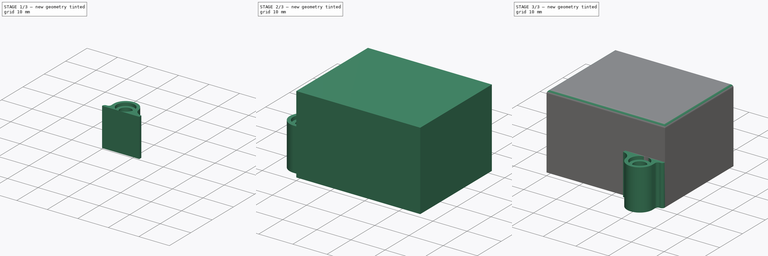
[diagram: build sequence overview — one tinted view per stage of 3, left to right]
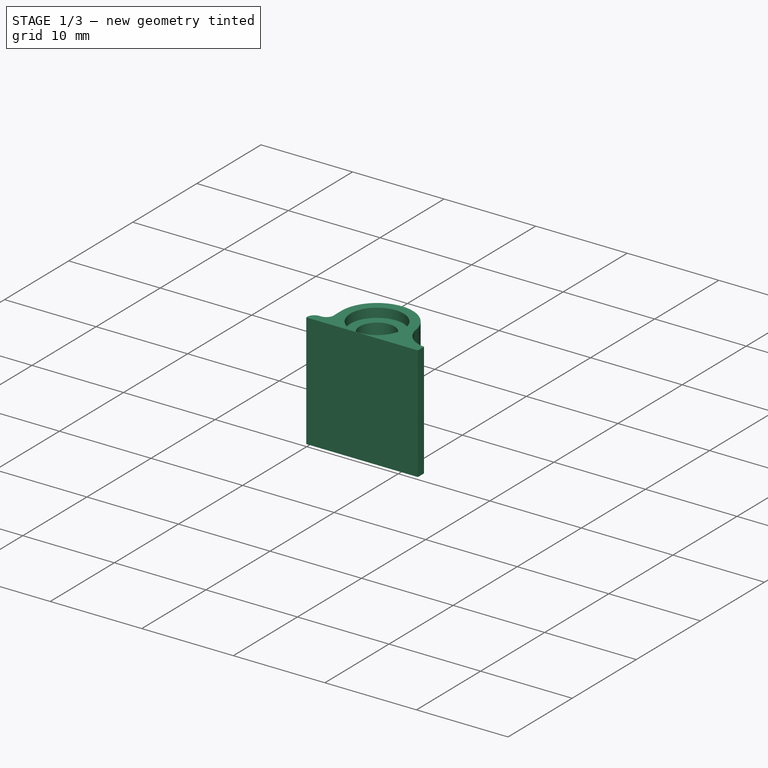
[diagram: stage 1 of 3 — iso view after this stage's code; geometry added in this stage tinted green]
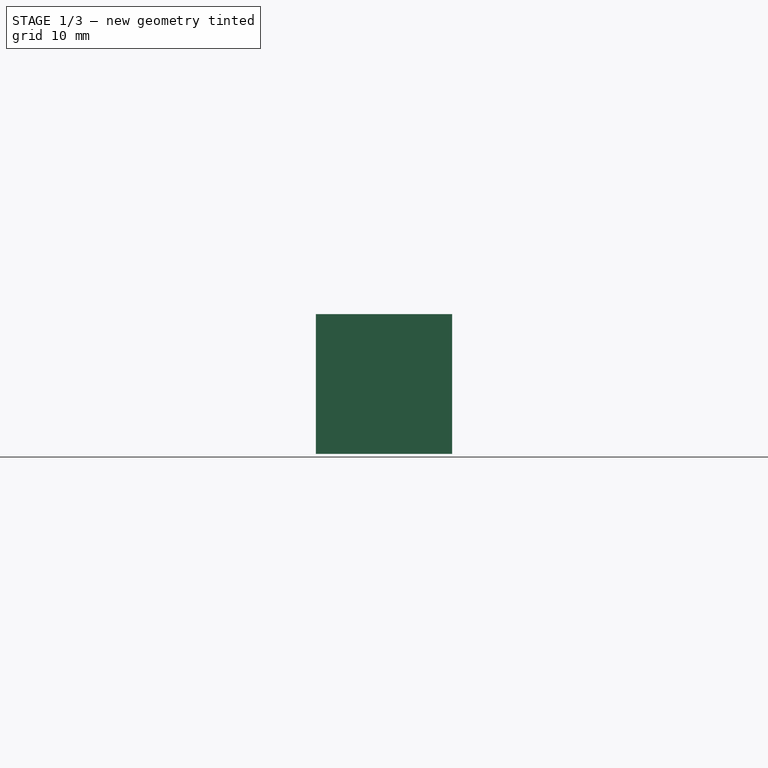
[diagram: stage 1 of 3 — front view after this stage's code; geometry added in this stage tinted green]
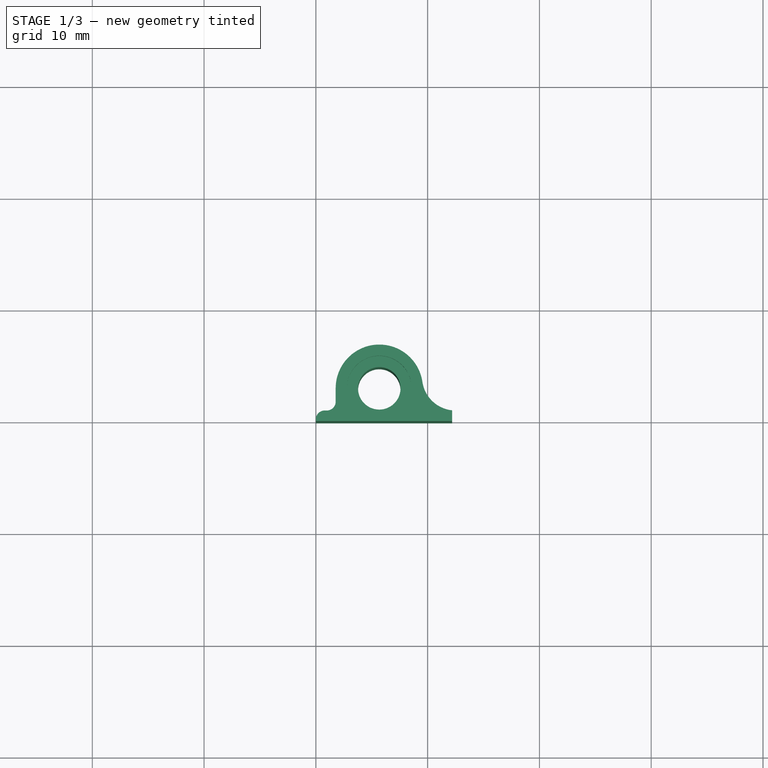
[diagram: stage 1 of 3 — top view after this stage's code; geometry added in this stage tinted green]
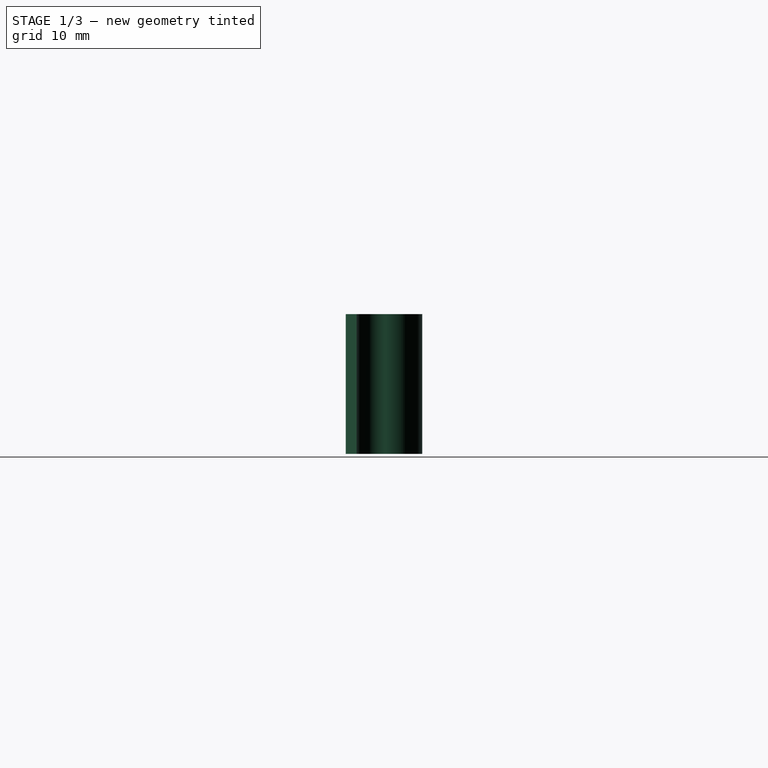
[diagram: stage 1 of 3 — right view after this stage's code; geometry added in this stage tinted green]
FCSTD DOCUMENT  (FreeCAD 1.0R39109 (Git))
Label: relay_case
License: All rights reserved
LicenseURL: https://en.wikipedia.org/wiki/All_rights_reserved
objects: PartDesign::Body×2, Sketcher::SketchObject×1, PartDesign::Pad×1, Part::Box×1, Part::Feature×1, Part::Common×1, PartDesign::FeatureBase×1, App::Part×1, Part::FeaturePython×1, Part::Fillet×1
note: 14 computed .brp shape members not serialized (recipe doc carries the construction recipe); baked Part::Feature solids carry a one-line shape summary decoded from their .brp

FEATURE [PartDesign::Body] Body  label="Main Body"
  AllowCompound = false
  Group = -> [Sketch,Pad]
  Origin = -> Origin
  Tip = -> Pad
FEATURE [Part::Box] Box  label="Cube"
  AttacherType = Attacher::AttachEngine3D
  Height = 12.7
  Length = 9.906
  Placement = pos=(-8.9662,0,0) rot=(0,0,1;0rad)
  Width = 12.192
  expr: .Placement.Base.x = -Length + 37 thou
FEATURE [Part::Feature] Part__Feature  label="RPI2-TOP"
  Placement = pos=(0,-4.4069,10.5029) rot=(-1,0,0;4.71239rad)
  shape: bbox 73.8 x 96.25 x 15.5 mm, 216 faces (baked)
FEATURE [Part::Common] Common  label="Screw hole"
  Base = -> Part__Feature
  Placement = pos=(0,30.8798,0) rot=(0,0,1;-1.5708rad)
  Refine = true
  Tool = -> Box
  expr: .Placement.Base.y = Sketch.Constraints.width + 37 thou
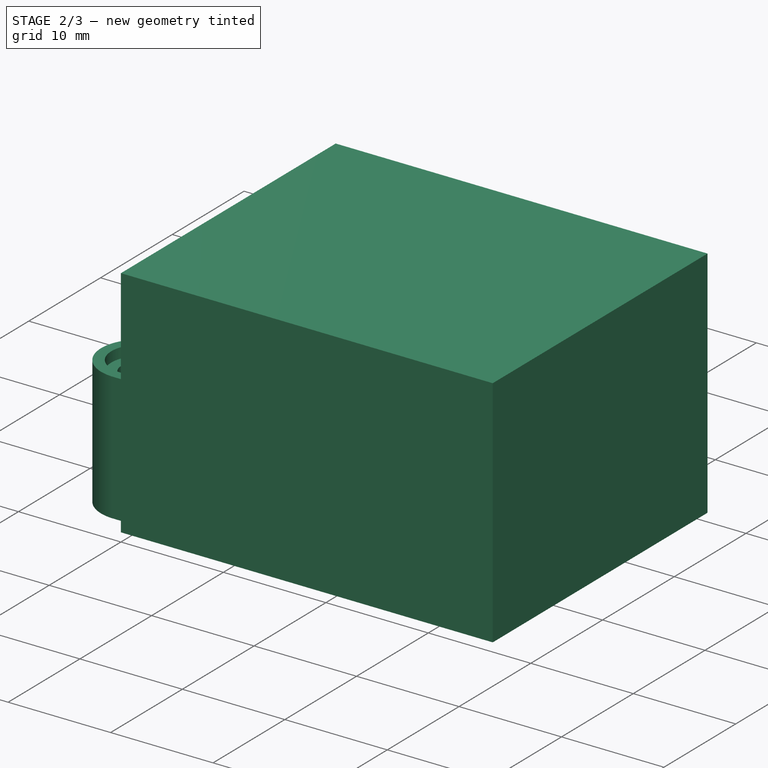
[diagram: stage 2 of 3 — iso view after this stage's code; geometry added in this stage tinted green]
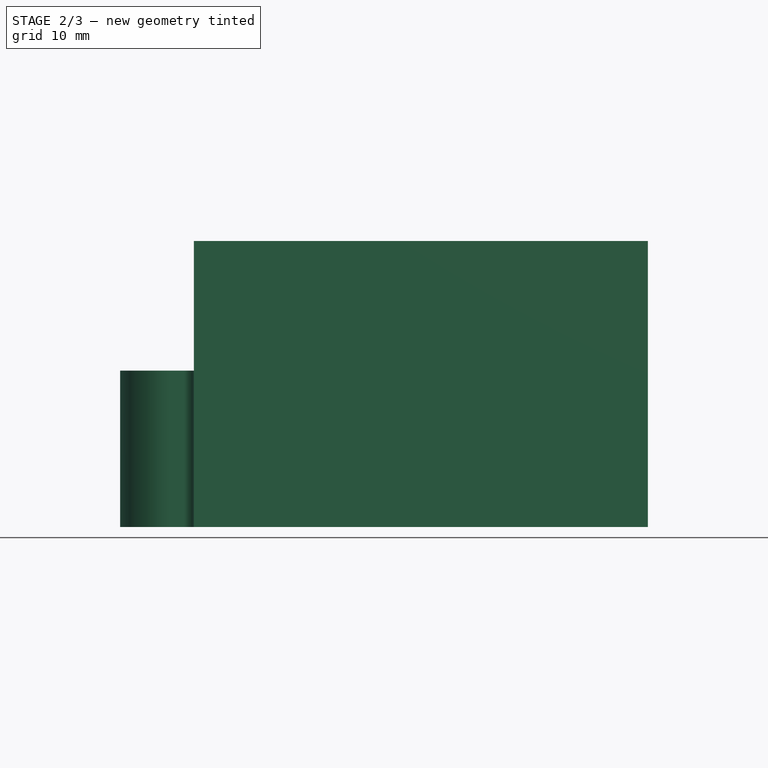
[diagram: stage 2 of 3 — front view after this stage's code; geometry added in this stage tinted green]
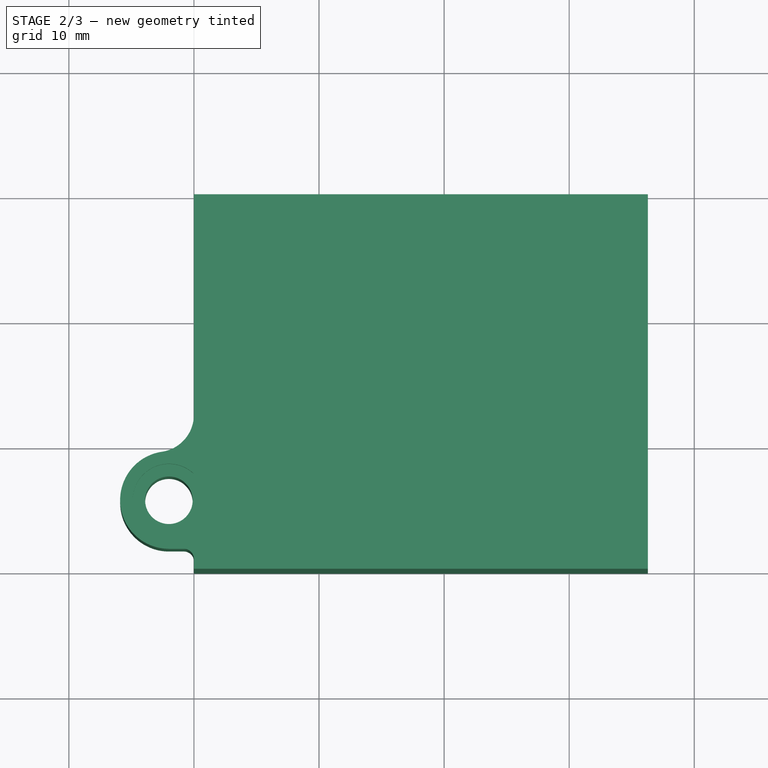
[diagram: stage 2 of 3 — top view after this stage's code; geometry added in this stage tinted green]
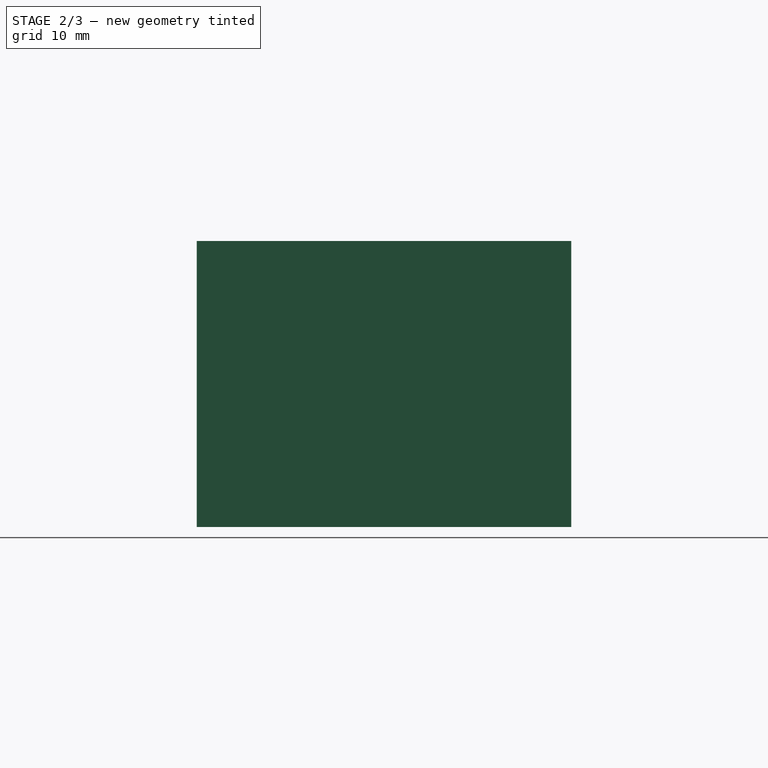
[diagram: stage 2 of 3 — right view after this stage's code; geometry added in this stage tinted green]
FEATURE [Sketcher::SketchObject] Sketch
  ArcFitTolerance = 1e-06
  AttachmentSupport = -> [XY_Plane]
  FullyConstrained = true
  MakeInternals = false
  MapMode = 5
  expr: .Constraints.length = 1.35 " + 39.37 * 2 thou
  expr: .Constraints.width = 1.1 " + 39.37 * 2 thou
  sketch-geometry (4):
    g0: LineSegment StartX=0 StartY=0 StartZ=0 EndX=36.29 EndY=0 EndZ=0
    g1: LineSegment StartX=36.29 StartY=0 StartZ=0 EndX=36.29 EndY=29.94 EndZ=0
    g2: LineSegment StartX=36.29 StartY=29.94 StartZ=0 EndX=0 EndY=29.94 EndZ=0
    g3: LineSegment StartX=0 StartY=29.94 StartZ=0 EndX=0 EndY=0 EndZ=0
  constraints (11):
    c: Coincident(g0,g1)
    c: Coincident(g1,g2)
    c: Coincident(g2,g3)
    c: Coincident(g3,g0)
    c: Horizontal(g0)
    c: Horizontal(g2)
    c: Vertical(g1)
    c: Vertical(g3)
    c: Distance(g1,g3) = 36.29  'length'
    c: Distance(g0,g2) = 29.94  'width'
    c: Coincident(g0,g-1)
FEATURE [PartDesign::Pad] Pad
  Direction = (0,0,1)
  Length = 22.86
  Length2 = 10
  Profile = -> Sketch
  ReferenceAxis = -> Sketch [N_Axis]
  Refine = true
  Suppressed = false
  Type = 0
FEATURE [PartDesign::FeatureBase] Clone
  BaseFeature = -> Common
  Suppressed = false
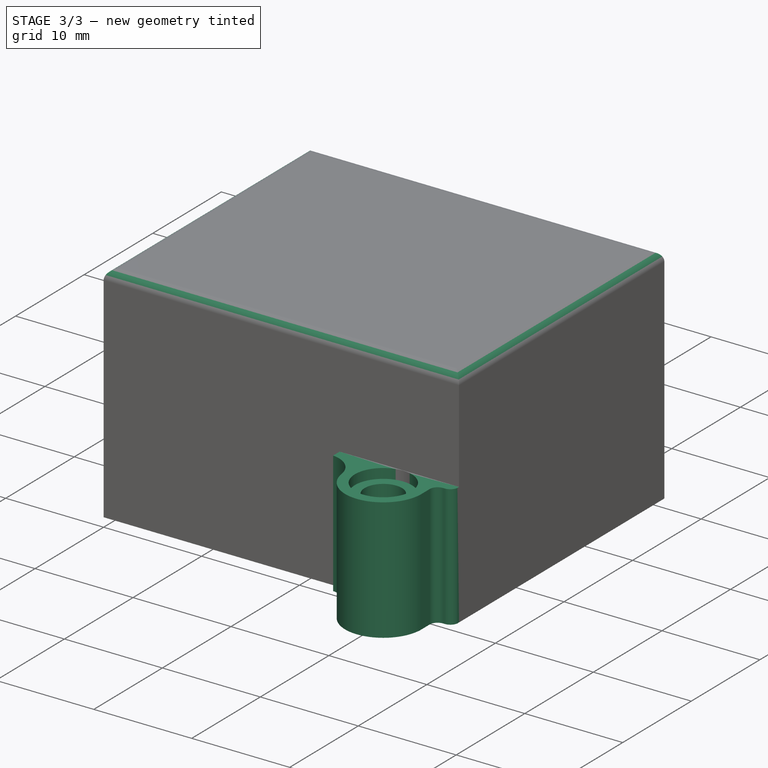
[diagram: stage 3 of 3 — iso view after this stage's code; geometry added in this stage tinted green]
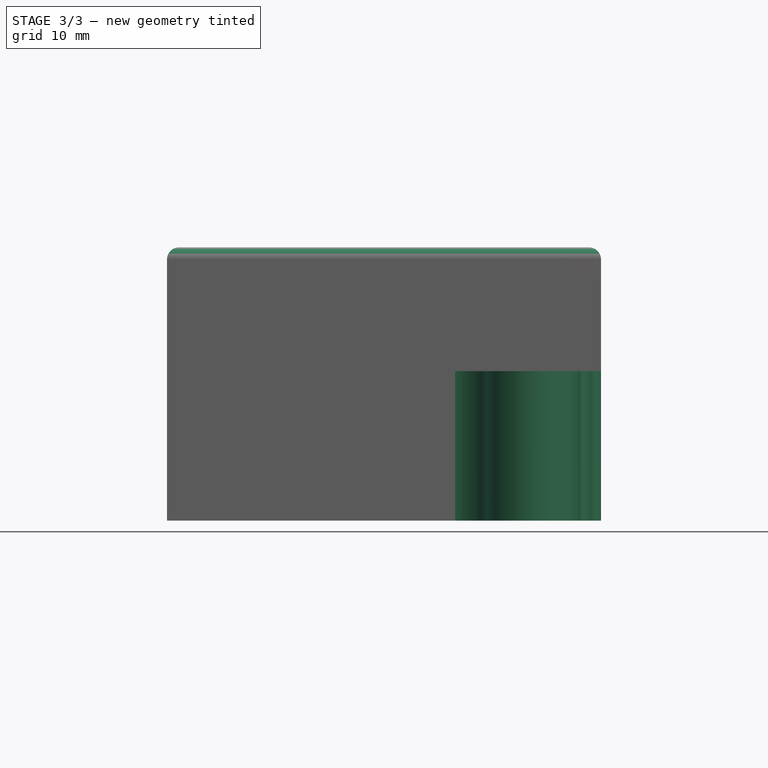
[diagram: stage 3 of 3 — front view after this stage's code; geometry added in this stage tinted green]
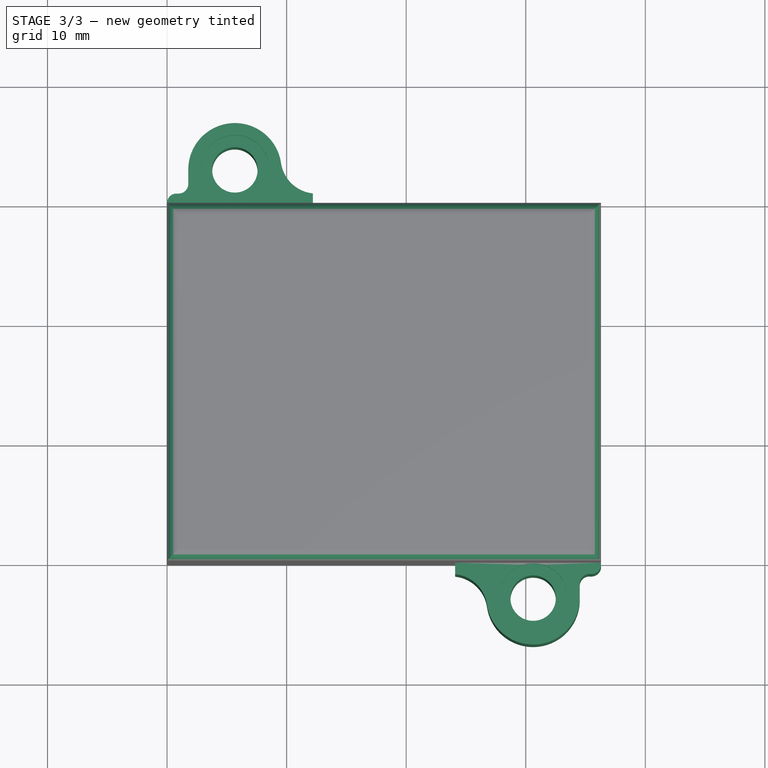
[diagram: stage 3 of 3 — top view after this stage's code; geometry added in this stage tinted green]
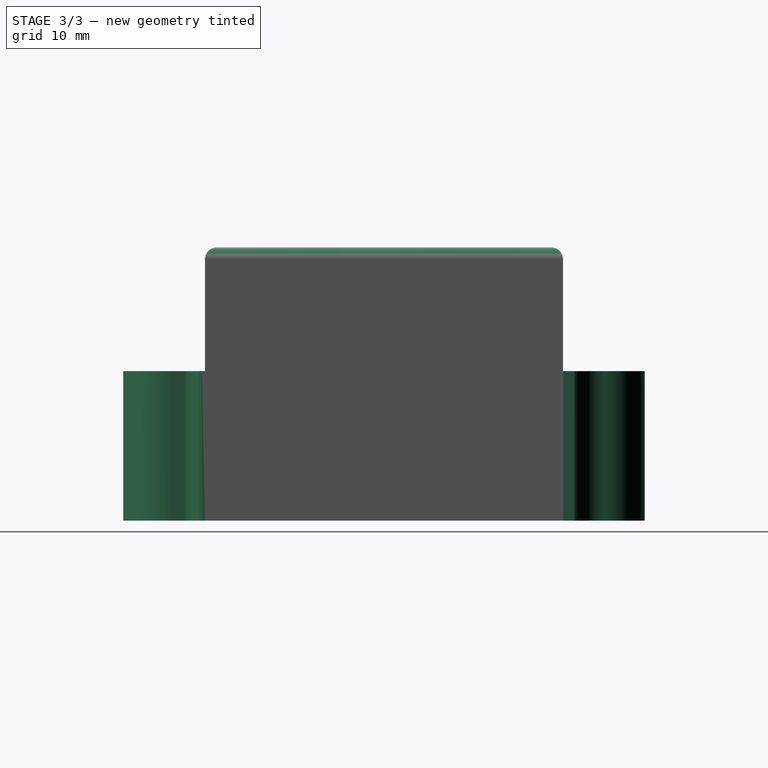
[diagram: stage 3 of 3 — right view after this stage's code; geometry added in this stage tinted green]
FEATURE [PartDesign::Body] Body001  label="Cloned screw hole"
  AllowCompound = false
  Group = -> [Clone]
  Origin = -> Origin002
  Placement = pos=(36.29,-0.9398,0) rot=(0,0,1;1.5708rad)
  Tip = -> Clone
  expr: .Placement.Base.x = Sketch.Constraints.length
FEATURE [App::Part] Part
  Group = -> [Box,Part__Feature,Common,Body001,Body]
  Origin = -> Origin001
FEATURE [Part::FeaturePython] Connect  # WARN: FeaturePython — macro-defined, semantics opaque (R4)
  Objects = -> [Part]
  Refine = true
  Tolerance = 0
FEATURE [Part::Fillet] Fillet
  Base = -> Connect
  EdgeLinks = -> Connect [Edge10,Edge41,Edge42,Edge43]
  Edges = 4 edges r=1: [Edge10,Edge41,Edge42,Edge43]
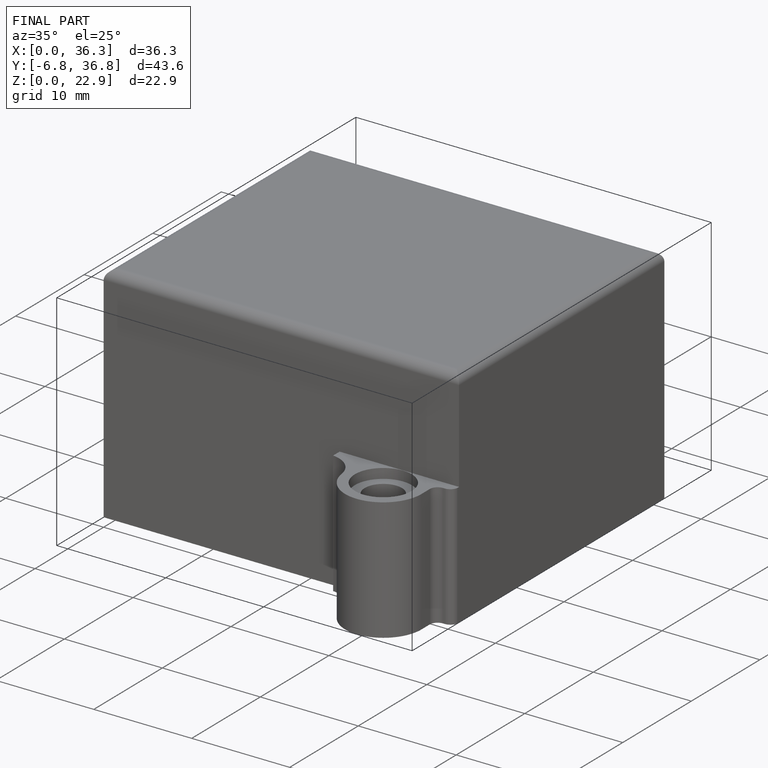
[diagram: finished part — iso view with bounding-box wireframe]
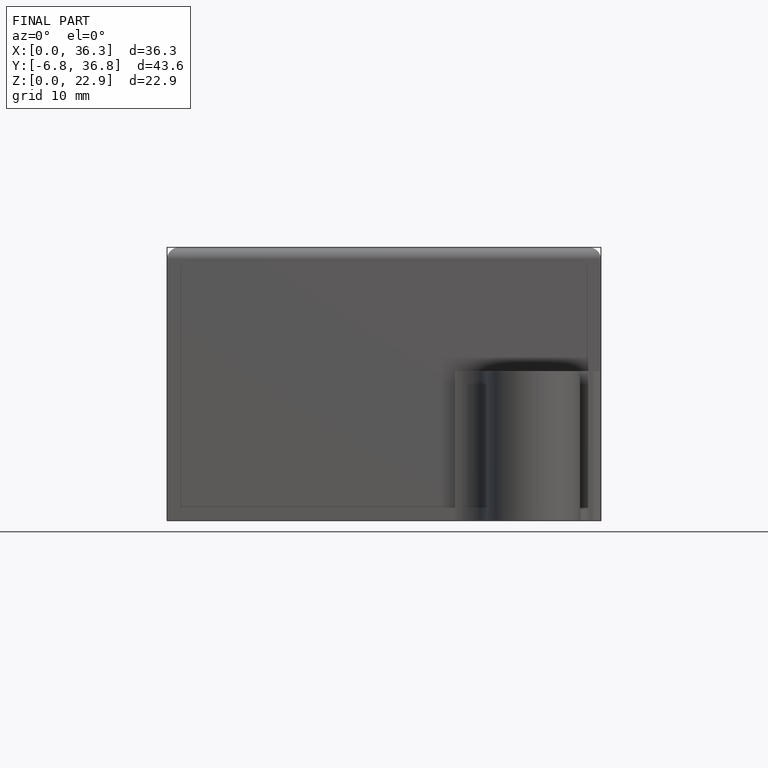
[diagram: finished part — front view with bounding-box wireframe]
